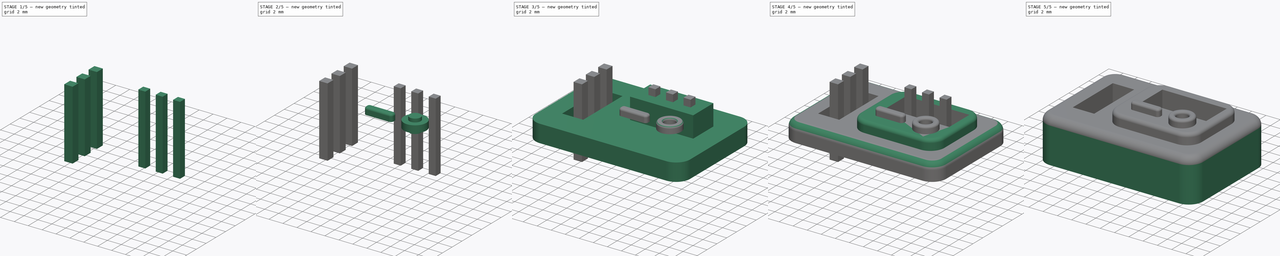
[diagram: build sequence overview — one tinted view per stage of 5, left to right]
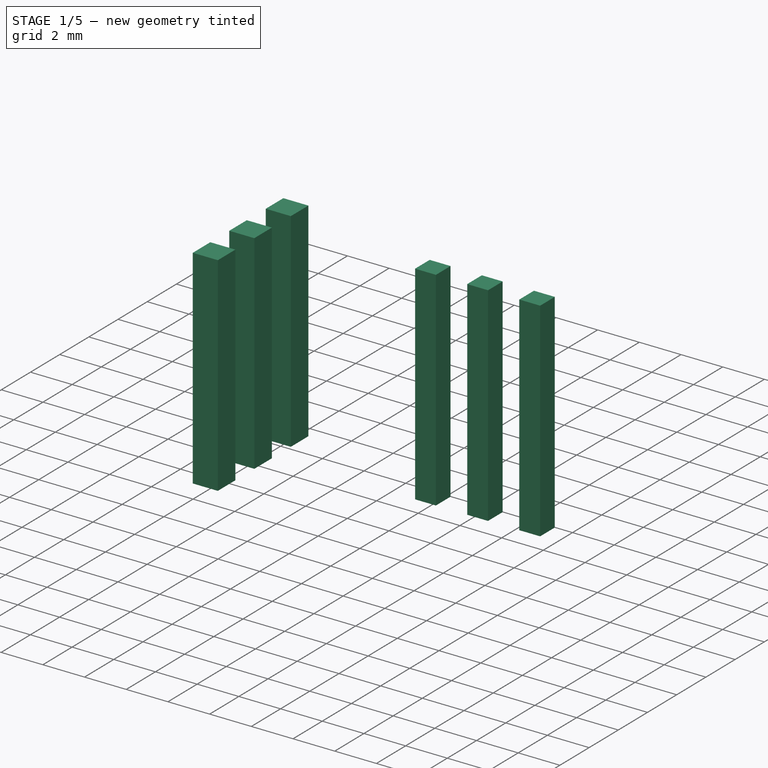
[diagram: stage 1 of 5 — iso view after this stage's code; geometry added in this stage tinted green]
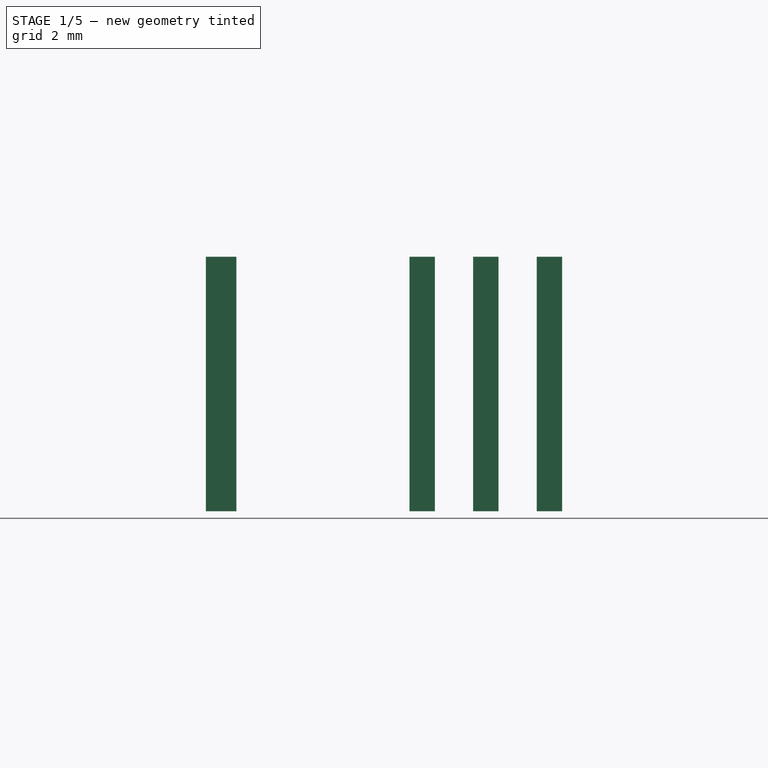
[diagram: stage 1 of 5 — front view after this stage's code; geometry added in this stage tinted green]
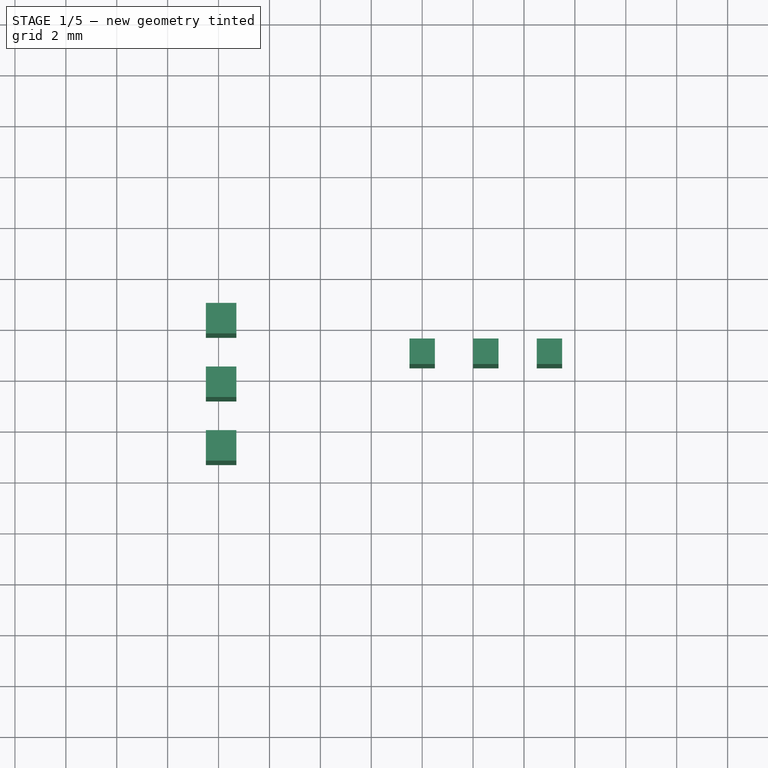
[diagram: stage 1 of 5 — top view after this stage's code; geometry added in this stage tinted green]
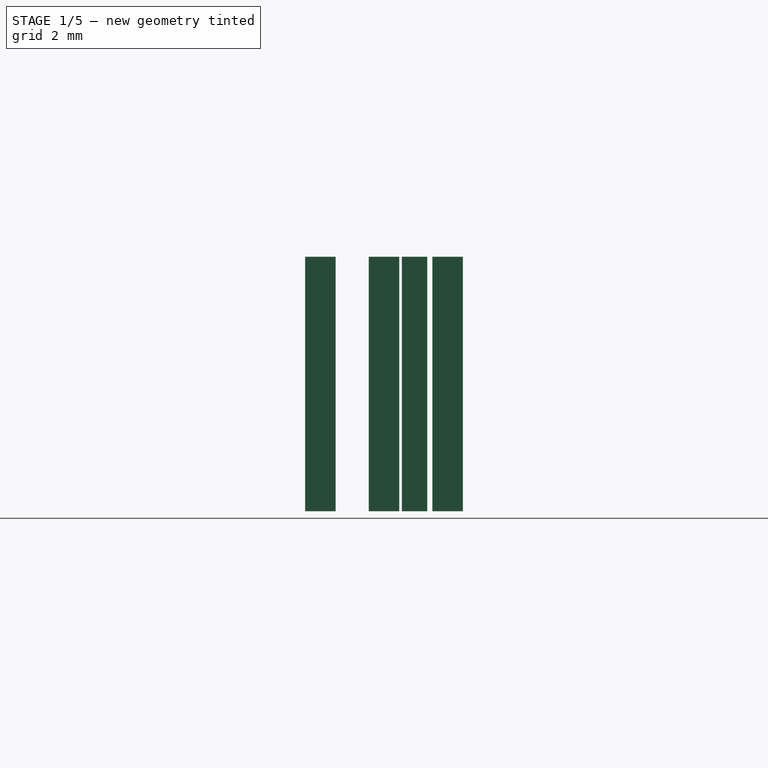
[diagram: stage 1 of 5 — right view after this stage's code; geometry added in this stage tinted green]
FCSTD DOCUMENT  (FreeCAD 0.18R16131 (Git))
Label: PCBPrint interruptor conmutador
License: Public Domain
LicenseURL: http://en.wikipedia.org/wiki/Public_domain
objects: Part::Box×10, Part::Feature×7, Part::Cut×6, Part::Fillet×6, Sketcher::SketchObject×4, App::DocumentObjectGroup×4, PartDesign::Pad×3, PartDesign::Body×3, Part::Cylinder×2, Part::MultiFuse×2, PartDesign::Pocket×1
note: 48 computed .brp shape members not serialized (recipe doc carries the construction recipe); baked Part::Feature solids carry a one-line shape summary decoded from their .brp

FEATURE [Part::Box] Box004  label="Cubo004"
  AttacherType = Attacher::AttachEngine3D
  Height = 10
  Length = 1.2
  Placement = pos=(3.5,4.7,0) rot=(0,0,1;0rad)
  Width = 1.2
FEATURE [Part::Box] Box005  label="Cubo005"
  AttacherType = Attacher::AttachEngine3D
  Height = 10
  Length = 1.2
  Placement = pos=(3.5,9.7,0) rot=(0,0,1;0rad)
  Width = 1.2
FEATURE [Part::Box] Box006  label="Cubo006"
  AttacherType = Attacher::AttachEngine3D
  Height = 10
  Length = 1.2
  Placement = pos=(3.5,7.2,0) rot=(0,0,1;0rad)
  Width = 1.2
FEATURE [Part::Box] Box007  label="Cubo007"
  AttacherType = Attacher::AttachEngine3D
  Height = 10
  Length = 1
  Placement = pos=(11.5,8.5,0) rot=(0,0,1;0rad)
  Width = 1
FEATURE [Part::Box] Box008  label="Cubo008"
  AttacherType = Attacher::AttachEngine3D
  Height = 10
  Length = 1
  Placement = pos=(14,8.5,0) rot=(0,0,1;0rad)
  Width = 1
FEATURE [Part::Box] Box009  label="Cubo009"
  AttacherType = Attacher::AttachEngine3D
  Height = 10
  Length = 1
  Placement = pos=(16.5,8.5,0) rot=(0,0,1;0rad)
  Width = 1
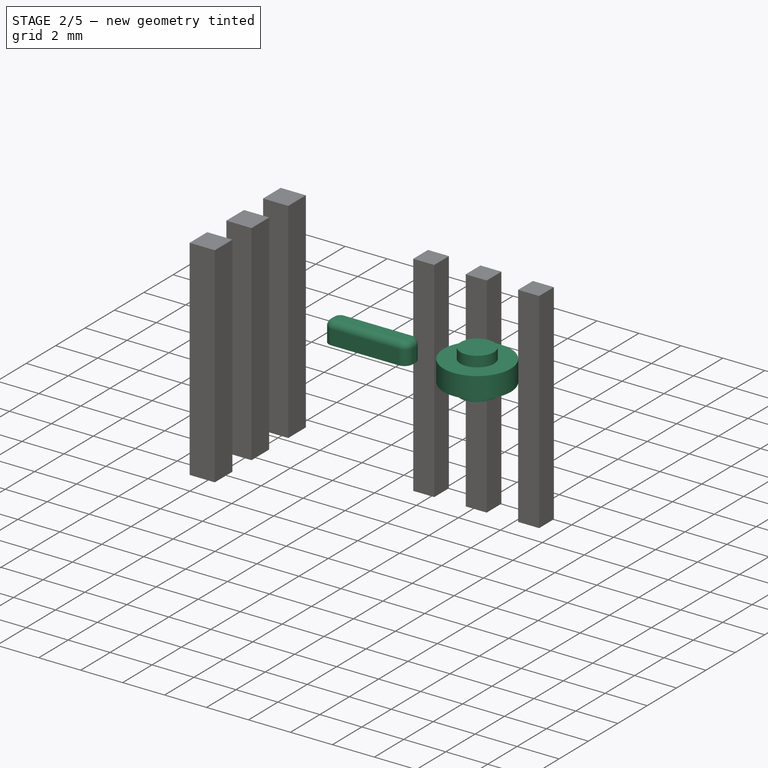
[diagram: stage 2 of 5 — iso view after this stage's code; geometry added in this stage tinted green]
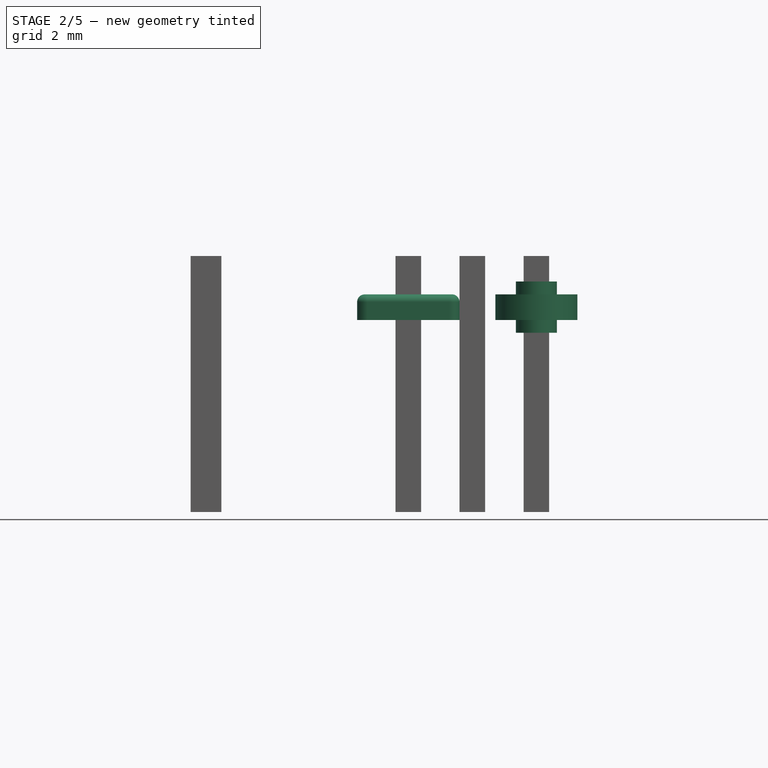
[diagram: stage 2 of 5 — front view after this stage's code; geometry added in this stage tinted green]
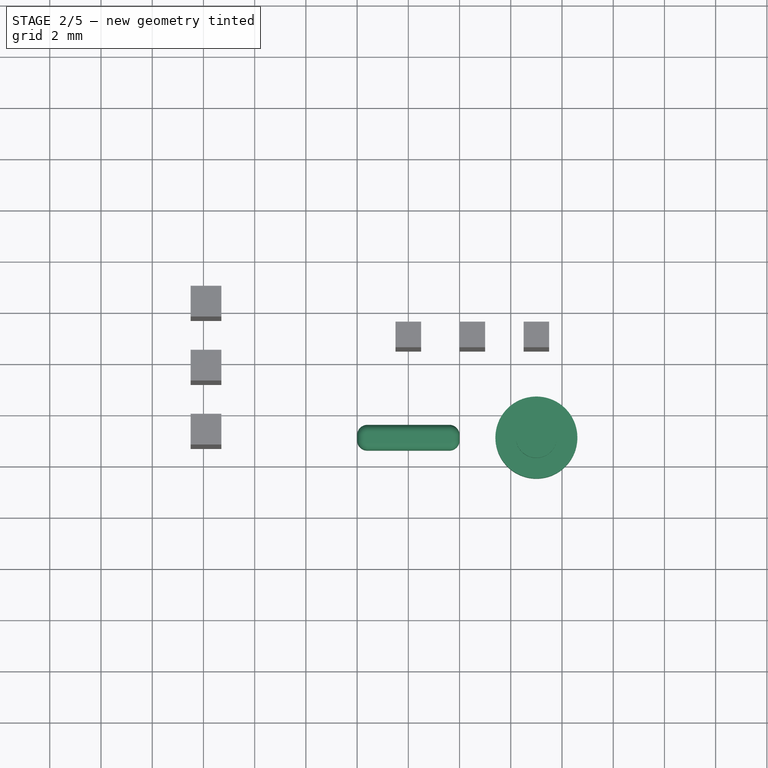
[diagram: stage 2 of 5 — top view after this stage's code; geometry added in this stage tinted green]
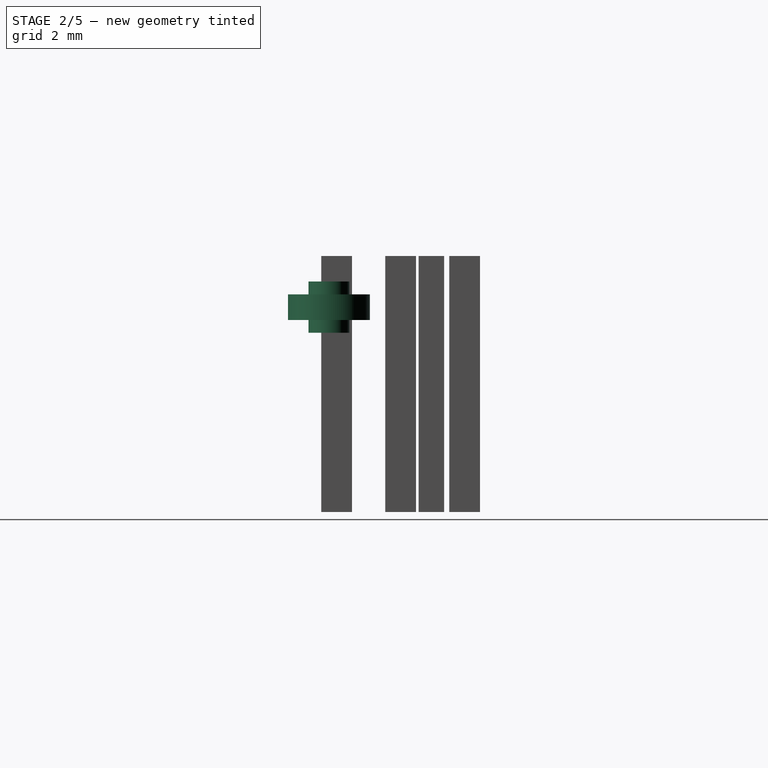
[diagram: stage 2 of 5 — right view after this stage's code; geometry added in this stage tinted green]
FEATURE [Part::Cylinder] Cylinder  label="Cilindro"
  Angle = 360
  AttacherType = Attacher::AttachEngine3D
  Height = 1
  Placement = pos=(17,5,7.5) rot=(0,0,1;0rad)
  Radius = 1.6
FEATURE [Part::Cylinder] Cylinder001  label="Cilindro001"
  Angle = 360
  AttacherType = Attacher::AttachEngine3D
  Height = 2
  Placement = pos=(17,5,7) rot=(0,0,1;0rad)
  Radius = 0.8
FEATURE [Part::Box] Box003  label="Cubo003"
  AttacherType = Attacher::AttachEngine3D
  Height = 1
  Length = 4
  Placement = pos=(10,4.5,7.5) rot=(0,0,1;0rad)
  Width = 1
FEATURE [Part::Fillet] Fillet010
  Base = -> Box003
  Edges = 4 edges r=0.4: [Edge1,Edge3,Edge5,Edge7]
FEATURE [Part::Fillet] Fillet011
  Base = -> Fillet010
  Edges = 1 edges r=0.3: [Edge7]
FEATURE [Part::MultiFuse] Fusion001  label="taladros"
  Refine = true
  Shapes = -> [Box009,Box008,Box007,Box006,Box005,Box004]
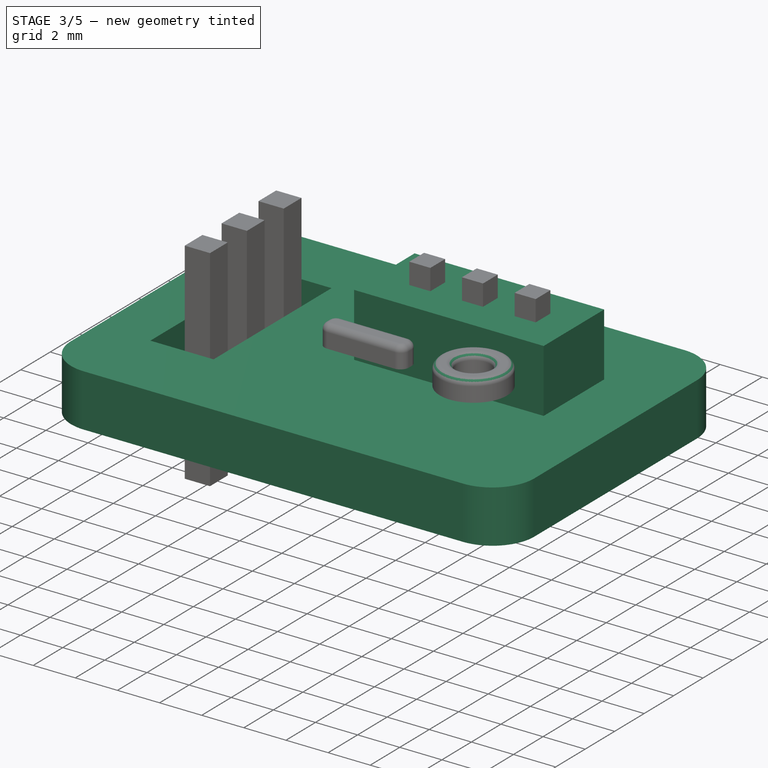
[diagram: stage 3 of 5 — iso view after this stage's code; geometry added in this stage tinted green]
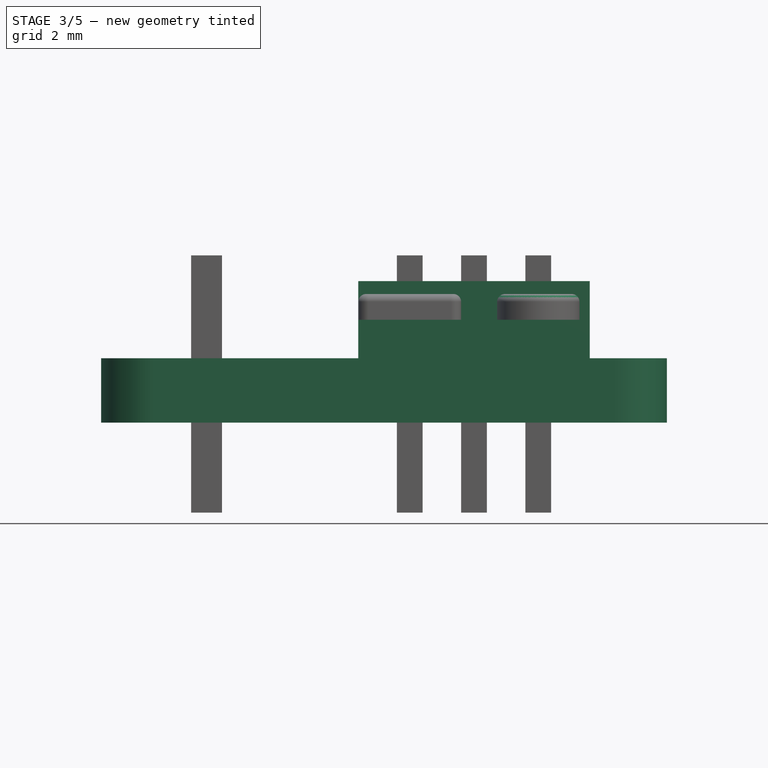
[diagram: stage 3 of 5 — front view after this stage's code; geometry added in this stage tinted green]
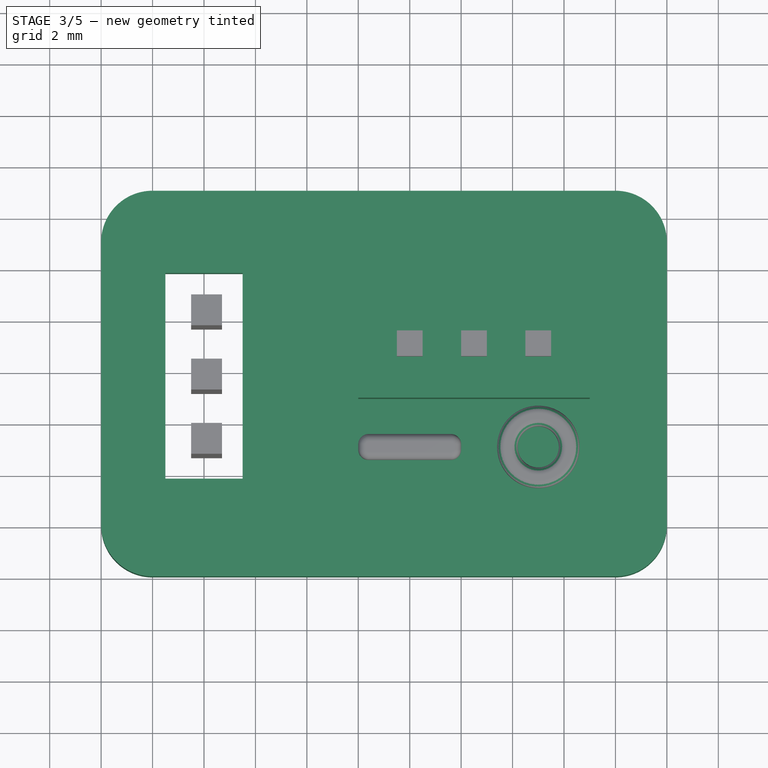
[diagram: stage 3 of 5 — top view after this stage's code; geometry added in this stage tinted green]
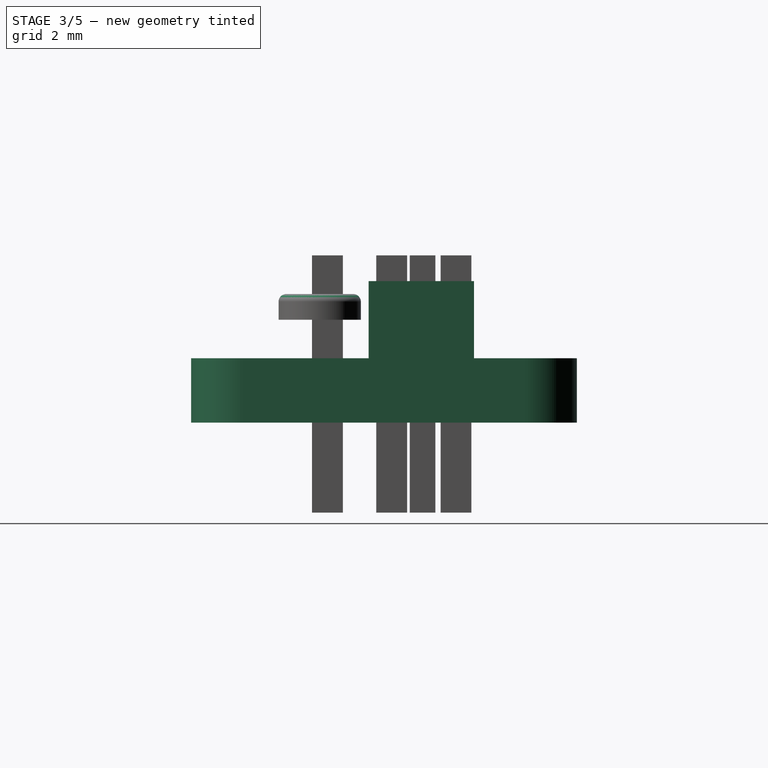
[diagram: stage 3 of 5 — right view after this stage's code; geometry added in this stage tinted green]
FEATURE [PartDesign::Body] Body001  label="Piso solido"
  Group = -> [Sketch003,Pad003005]
  Origin = -> Origin001
  Placement = pos=(0,0,2) rot=(0,0,1;0rad)
  Tip = -> Pad003005
FEATURE [Sketcher::SketchObject] Sketch004  label="PCB-base-sketch002"
  MapMode = 5
  sketch-geometry (12):
    g0: LineSegment [constr] StartX=0 StartY=0 StartZ=0 EndX=22 EndY=0 EndZ=0
    g1: LineSegment [constr] StartX=22 StartY=0 StartZ=0 EndX=22 EndY=15 EndZ=0
    g2: LineSegment [constr] StartX=22 StartY=15 StartZ=0 EndX=0 EndY=15 EndZ=0
    g3: LineSegment [constr] StartX=0 StartY=15 StartZ=0 EndX=0 EndY=0 EndZ=0
    g4: LineSegment StartX=2 StartY=15 StartZ=0 EndX=20 EndY=15 EndZ=0
    g5: LineSegment StartX=22 StartY=13 StartZ=0 EndX=22 EndY=2 EndZ=0
    g6: LineSegment StartX=20 StartY=0 StartZ=0 EndX=2 EndY=0 EndZ=0
    g7: LineSegment StartX=0 StartY=2 StartZ=0 EndX=0 EndY=13 EndZ=0
    g8: ArcOfCircle CenterX=2 CenterY=13 CenterZ=0 NormalX=0 NormalY=0 NormalZ=1 AngleXU=0 Radius=2 StartAngle=1.5708 EndAngle=3.14159
    g9: ArcOfCircle CenterX=2 CenterY=2 CenterZ=0 NormalX=0 NormalY=0 NormalZ=1 AngleXU=0 Radius=2 StartAngle=3.14159 EndAngle=4.71239
    g10: ArcOfCircle CenterX=20 CenterY=2 CenterZ=0 NormalX=0 NormalY=0 NormalZ=1 AngleXU=0 Radius=2 StartAngle=4.71239 EndAngle=6.28319
    g11: ArcOfCircle CenterX=20 CenterY=13 CenterZ=0 NormalX=0 NormalY=0 NormalZ=1 AngleXU=0 Radius=2 StartAngle=0 EndAngle=1.5708
  constraints (31):
    c: Coincident(g0,g1)
    c: Coincident(g1,g2)
    c: Coincident(g2,g3)
    c: Coincident(g3,g0)
    c: Horizontal(g0)
    c: Horizontal(g2)
    c: Vertical(g1)
    c: Vertical(g3)
    c: Coincident(g0,g-1)
    c: DistanceX(g0,g0) = 22
    c: DistanceY(g1,g1) = 15
    c: Horizontal(g4)
    c: Horizontal(g6)
    c: Vertical(g5)
    c: Vertical(g7)
    c: Tangent(g4,g8) = 1.5708
    c: Tangent(g7,g8) = 1.5708
    c: Tangent(g6,g9) = 1.5708
    c: Tangent(g7,g9) = 1.5708
    c: Tangent(g5,g10) = 1.5708
    c: Tangent(g6,g10) = 1.5708
    c: Tangent(g4,g11) = 1.5708
    c: Tangent(g5,g11) = 1.5708
    c: Equal(g8,g11)
    c: Equal(g11,g10)
    c: Equal(g10,g9)
    c: Radius(g8) = 2
    c: PointOnObject(g7,g3)
    c: PointOnObject(g4,g2)
    c: PointOnObject(g6,g0)
    c: PointOnObject(g5,g1)
FEATURE [PartDesign::Pad] Pad003006
  Length = 2.5
  Length2 = 100
  Profile = -> Sketch004
  Refine = true
  Type = 0
FEATURE [PartDesign::Body] Body002  label="cuerpo superior"
  Group = -> [Sketch004,Pad003006]
  Origin = -> Origin002
  Placement = pos=(0,0,3.5) rot=(0,0,1;0rad)
  Tip = -> Pad003006
FEATURE [Part::Box] Box  label="Cubo"
  AttacherType = Attacher::AttachEngine3D
  Height = 6
  Length = 3
  Placement = pos=(2.5,3.8,3) rot=(0,0,1;0rad)
  Width = 8
FEATURE [Part::Cut] Cut001  label="corte conector piso superior"
  Base = -> Body002
  Refine = true
  Tool = -> Box
FEATURE [Part::Box] Box001  label="Cubo001"
  AttacherType = Attacher::AttachEngine3D
  Height = 5.5
  Length = 9
  Placement = pos=(10,6.9,3.5) rot=(0,0,1;0rad)
  Width = 4.1
FEATURE [Part::Cut] Cut004  label="cero"
  Base = -> Cylinder
  Refine = true
  Tool = -> Cylinder001
FEATURE [Part::Fillet] Fillet009  label="1"
  Base = -> Cut004
  Edges = 2 edges r=0.3: [Edge1,Edge4]
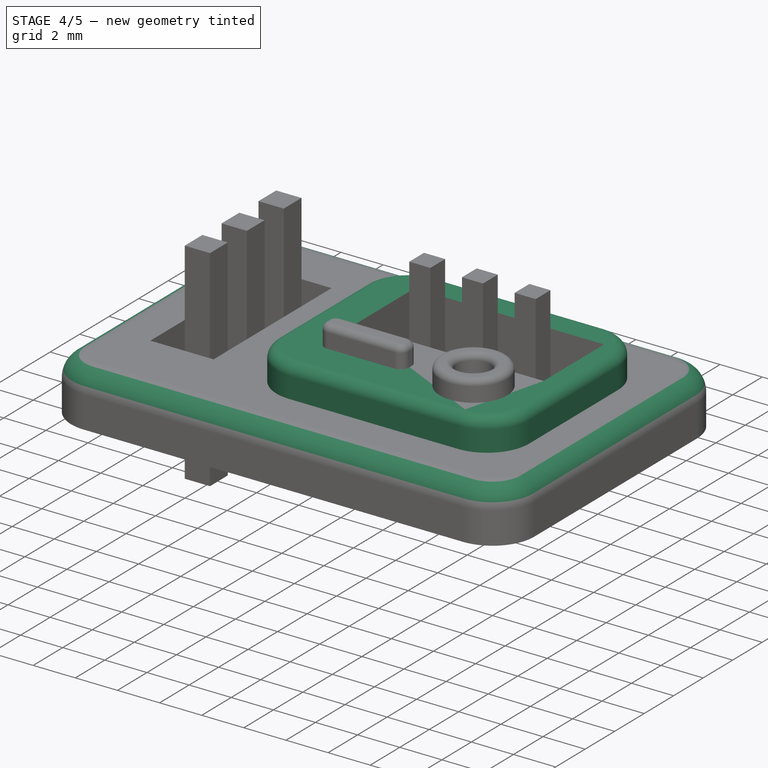
[diagram: stage 4 of 5 — iso view after this stage's code; geometry added in this stage tinted green]
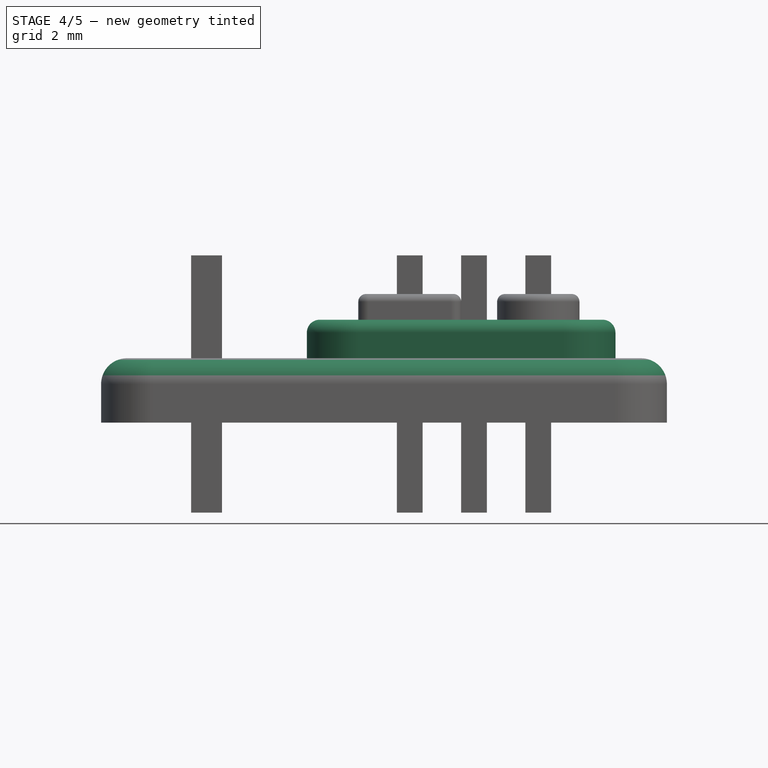
[diagram: stage 4 of 5 — front view after this stage's code; geometry added in this stage tinted green]
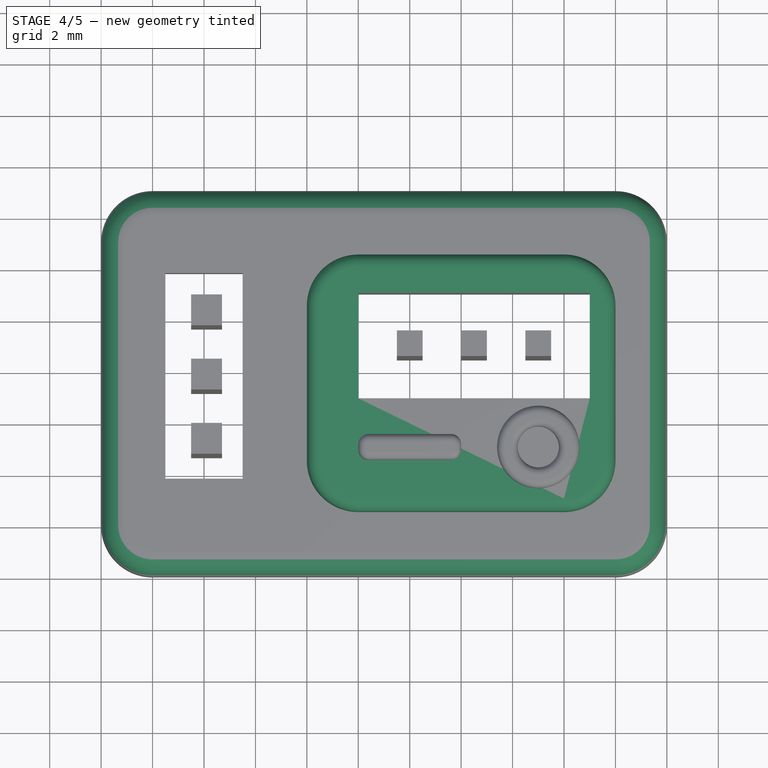
[diagram: stage 4 of 5 — top view after this stage's code; geometry added in this stage tinted green]
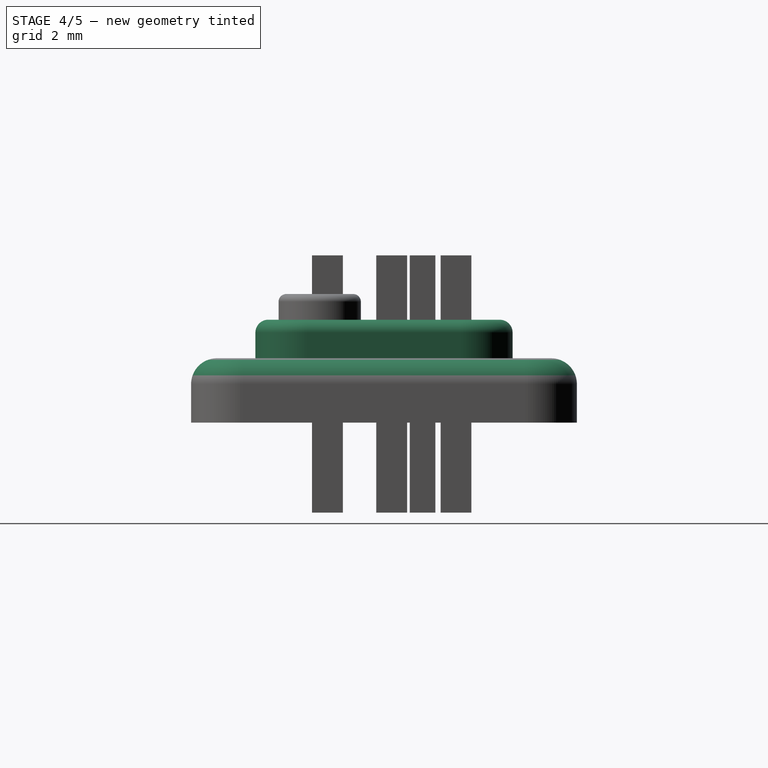
[diagram: stage 4 of 5 — right view after this stage's code; geometry added in this stage tinted green]
FEATURE [Part::Cut] Cut002  label="Corte interruptor piso superior"
  Base = -> Cut001
  Refine = true
  Tool = -> Box001
FEATURE [Part::Box] Box002  label="Cubo002"
  AttacherType = Attacher::AttachEngine3D
  Height = 1.5
  Length = 12
  Placement = pos=(8,2.5,6) rot=(0,0,1;0rad)
  Width = 10
FEATURE [Part::Cut] Cut003  label=" soporte 0-1"
  Base = -> Box002
  Refine = true
  Tool = -> Box001
FEATURE [Part::Fillet] Fillet
  Base = -> Cut003
  Edges = 4 edges r=2: [Edge1,Edge3,Edge6,Edge15]
FEATURE [Part::Fillet] Fillet007  label="soporte 0-1"
  Base = -> Fillet
  Edges = 1 edges r=0.5: [Edge1]
FEATURE [Part::Fillet] Fillet008
  Base = -> Cut002
  Edges = 1 edges r=1: [Edge4]
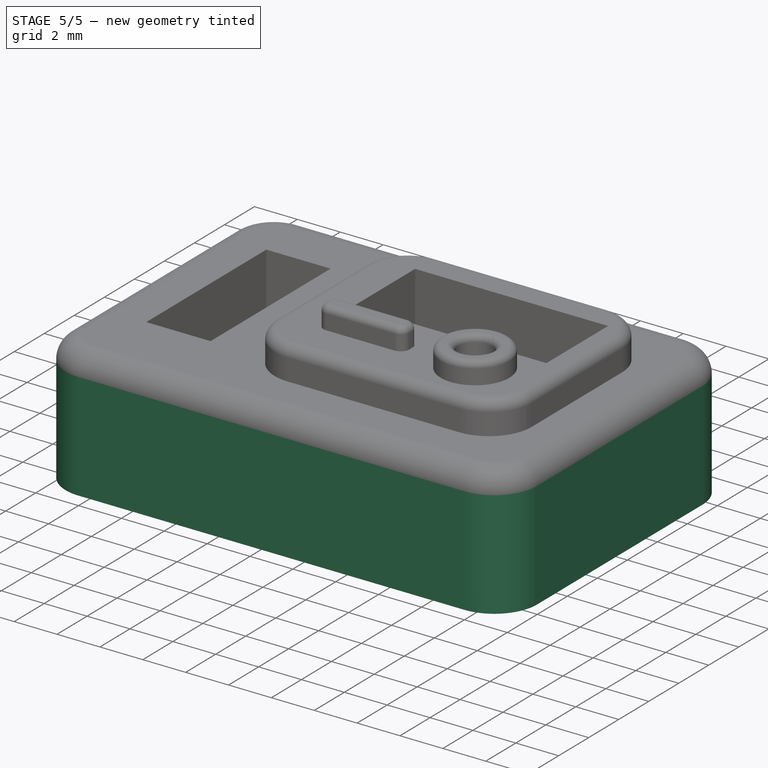
[diagram: stage 5 of 5 — iso view after this stage's code; geometry added in this stage tinted green]
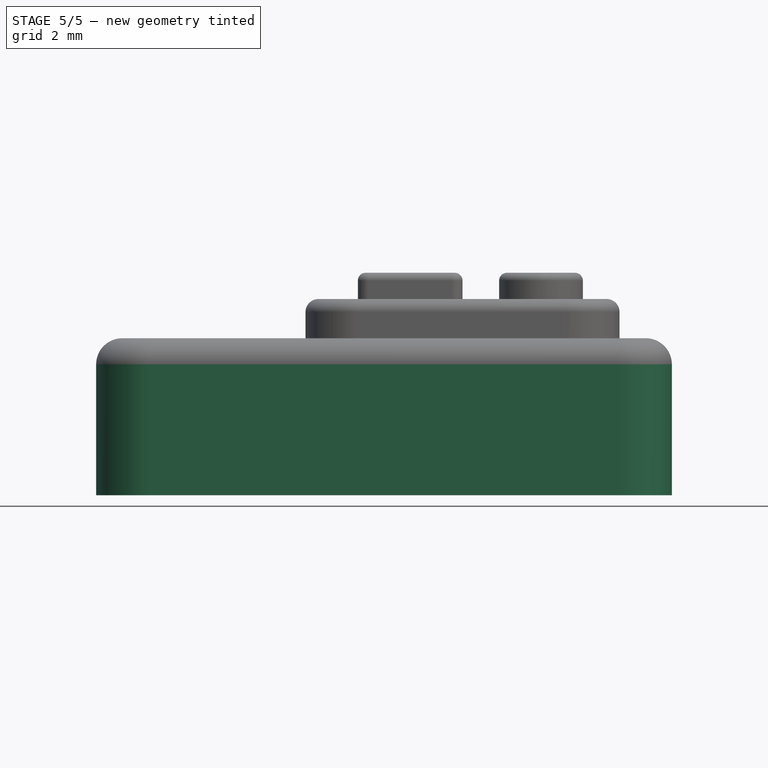
[diagram: stage 5 of 5 — front view after this stage's code; geometry added in this stage tinted green]
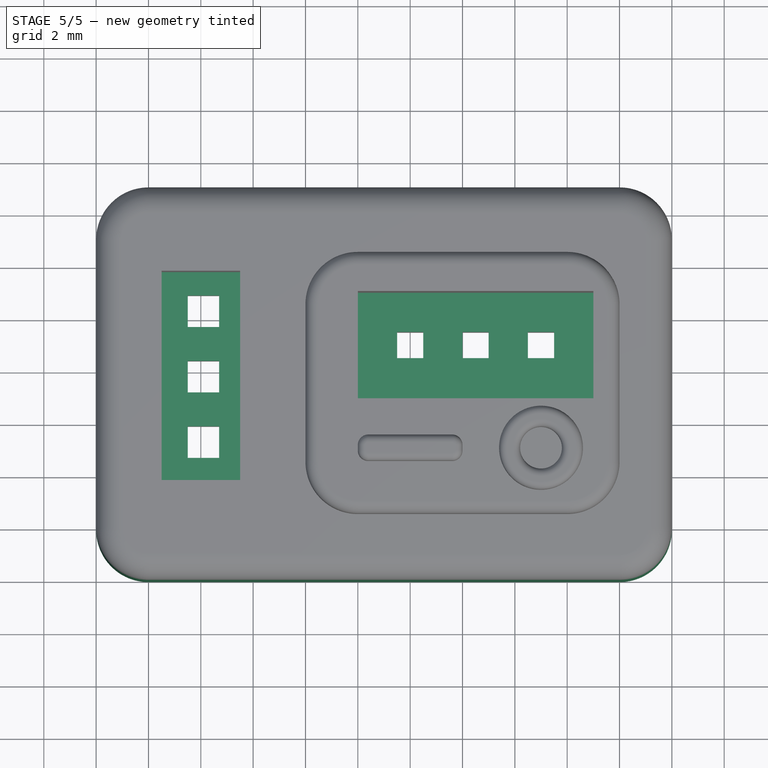
[diagram: stage 5 of 5 — top view after this stage's code; geometry added in this stage tinted green]
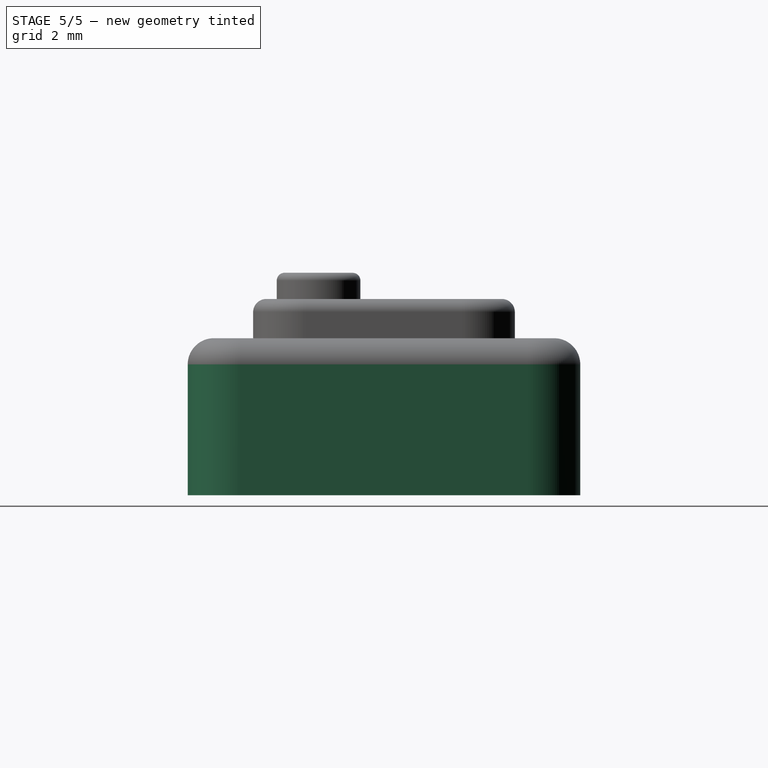
[diagram: stage 5 of 5 — right view after this stage's code; geometry added in this stage tinted green]
FEATURE [Sketcher::SketchObject] Sketch  label="PCB-base-sketch"
  MapMode = 5
  sketch-geometry (12):
    g0: LineSegment [constr] StartX=0 StartY=0 StartZ=0 EndX=22 EndY=0 EndZ=0
    g1: LineSegment [constr] StartX=22 StartY=0 StartZ=0 EndX=22 EndY=15 EndZ=0
    g2: LineSegment [constr] StartX=22 StartY=15 StartZ=0 EndX=0 EndY=15 EndZ=0
    g3: LineSegment [constr] StartX=0 StartY=15 StartZ=0 EndX=0 EndY=0 EndZ=0
    g4: LineSegment StartX=2 StartY=15 StartZ=0 EndX=20 EndY=15 EndZ=0
    g5: LineSegment StartX=22 StartY=13 StartZ=0 EndX=22 EndY=2 EndZ=0
    g6: LineSegment StartX=20 StartY=0 StartZ=0 EndX=2 EndY=0 EndZ=0
    g7: LineSegment StartX=0 StartY=2 StartZ=0 EndX=0 EndY=13 EndZ=0
    g8: ArcOfCircle CenterX=2 CenterY=13 CenterZ=0 NormalX=0 NormalY=0 NormalZ=1 AngleXU=0 Radius=2 StartAngle=1.5708 EndAngle=3.14159
    g9: ArcOfCircle CenterX=2 CenterY=2 CenterZ=0 NormalX=0 NormalY=0 NormalZ=1 AngleXU=0 Radius=2 StartAngle=3.14159 EndAngle=4.71239
    g10: ArcOfCircle CenterX=20 CenterY=2 CenterZ=0 NormalX=0 NormalY=0 NormalZ=1 AngleXU=0 Radius=2 StartAngle=4.71239 EndAngle=6.28319
    g11: ArcOfCircle CenterX=20 CenterY=13 CenterZ=0 NormalX=0 NormalY=0 NormalZ=1 AngleXU=0 Radius=2 StartAngle=0 EndAngle=1.5708
  constraints (31):
    c: Coincident(g0,g1)
    c: Coincident(g1,g2)
    c: Coincident(g2,g3)
    c: Coincident(g3,g0)
    c: Horizontal(g0)
    c: Horizontal(g2)
    c: Vertical(g1)
    c: Vertical(g3)
    c: Coincident(g0,g-1)
    c: DistanceX(g0,g0) = 22
    c: DistanceY(g1,g1) = 15
    c: Horizontal(g4)
    c: Horizontal(g6)
    c: Vertical(g5)
    c: Vertical(g7)
    c: Tangent(g4,g8) = 1.5708
    c: Tangent(g7,g8) = 1.5708
    c: Tangent(g6,g9) = 1.5708
    c: Tangent(g7,g9) = 1.5708
    c: Tangent(g5,g10) = 1.5708
    c: Tangent(g6,g10) = 1.5708
    c: Tangent(g4,g11) = 1.5708
    c: Tangent(g5,g11) = 1.5708
    c: Equal(g8,g11)
    c: Equal(g11,g10)
    c: Equal(g10,g9)
    c: Radius(g8) = 2
    c: PointOnObject(g7,g3)
    c: PointOnObject(g4,g2)
    c: PointOnObject(g6,g0)
    c: PointOnObject(g5,g1)
FEATURE [PartDesign::Pad] Pad
  Length = 2
  Length2 = 100
  Profile = -> Sketch
  Refine = true
  Type = 0
FEATURE [Part::Feature] Clone001001  label="pins001"
  Placement = pos=(2.8,10.27,8.2) rot=(-0.707107,0,-0.707107;3.14159rad)
  shape: bbox 4.57 x 5.72 x 10.36 mm, 54 faces, 3 solids (baked)
FEATURE [Part::Feature] Clone002001  label="Insulators001"
  Placement = pos=(2.8,5.27,2) rot=(0,1,0;1.5708rad)
  shape: bbox 2.5 x 7.62 x 2.54 mm, 42 faces, 3 solids (baked)
FEATURE [App::DocumentObjectGroup] Group001  label="connector"
  Group = -> [Clone001001,Clone002001]
FEATURE [Sketcher::SketchObject] Sketch001
  MapMode = 5
  Placement = pos=(0,0,2) rot=(0,0,1;0rad)
  Support = -> [Pad]
  sketch-geometry (21):
    g0: LineSegment StartX=10.0049 StartY=10.957 StartZ=0 EndX=12.982 EndY=10.957 EndZ=0
    g1: LineSegment StartX=10.0049 StartY=8.85701 StartZ=0 EndX=10.0049 EndY=10.957 EndZ=0
    g2: LineSegment StartX=3.10381 StartY=6.85701 StartZ=0 EndX=3.10381 EndY=8.85701 EndZ=0
    g3: LineSegment StartX=3.10381 StartY=8.85701 StartZ=0 EndX=10.0049 EndY=8.85701 EndZ=0
    g4: LineSegment StartX=3.10381 StartY=6.85701 StartZ=0 EndX=16.3555 EndY=6.85701 EndZ=0
    g5: LineSegment StartX=3.10381 StartY=9.54561 StartZ=0 EndX=5.50575 EndY=9.54561 EndZ=0
    g6: LineSegment StartX=5.50575 StartY=9.54561 StartZ=0 EndX=5.50575 EndY=12.4935 EndZ=0
    g7: LineSegment StartX=5.50575 StartY=12.4935 StartZ=0 EndX=12.7415 EndY=12.4935 EndZ=0
    g8: LineSegment StartX=15.9209 StartY=13.4938 StartZ=0 EndX=3.10381 EndY=13.4938 EndZ=0
    g9: LineSegment StartX=3.10381 StartY=13.4938 StartZ=0 EndX=3.10381 EndY=9.54561 EndZ=0
    g10: LineSegment StartX=15.9209 StartY=10.957 StartZ=0 EndX=19.0049 EndY=10.957 EndZ=0
    g11: LineSegment StartX=12.7415 StartY=12.4935 StartZ=0 EndX=12.982 EndY=10.957 EndZ=0
    g12: LineSegment StartX=15.9209 StartY=13.4938 StartZ=0 EndX=15.9209 EndY=10.957 EndZ=0
    g13: LineSegment StartX=3.10381 StartY=6.00762 StartZ=0 EndX=5.48168 EndY=6.00762 EndZ=0
    g14: LineSegment StartX=5.48168 StartY=6.00762 StartZ=0 EndX=5.48168 EndY=4.26973 EndZ=0
    g15: LineSegment StartX=5.48168 StartY=4.26973 StartZ=0 EndX=16.3555 EndY=4.26973 EndZ=0
    g16: LineSegment StartX=16.3555 StartY=4.26973 StartZ=0 EndX=16.3555 EndY=6.85701 EndZ=0
    g17: LineSegment StartX=19.0049 StartY=2.65271 StartZ=0 EndX=3.10381 EndY=2.65271 EndZ=0
    g18: LineSegment StartX=3.10381 StartY=2.65271 StartZ=0 EndX=3.10381 EndY=6.00762 EndZ=0
    g19: LineSegment [constr] StartX=3.10381 StartY=13.4938 StartZ=0 EndX=3.10381 EndY=2.65271 EndZ=0
    g20: LineSegment StartX=19.0049 StartY=10.957 StartZ=0 EndX=19.0049 EndY=2.65271 EndZ=0
  constraints (46):
    c: Coincident(g1,g0)
    c: Horizontal(g0)
    c: Vertical(g1)
    c: DistanceX(g0,g10) = 9
    c: Vertical(g2)
    c: Coincident(g2,g3)
    c: Horizontal(g3)
    c: Coincident(g1,g3)
    c: Coincident(g4,g2)
    c: Horizontal(g4)
    c: DistanceY(g2,g2) = 2
    c: Horizontal(g5)
    c: Coincident(g5,g6)
    c: Vertical(g6)
    c: Coincident(g6,g7)
    c: Horizontal(g7)
    c: Horizontal(g8)
    c: Coincident(g8,g9)
    c: Coincident(g9,g5)
    c: Vertical(g9)
    c: Tangent(g0,g10)
    c: Coincident(g11,g0)
    c: Coincident(g7,g11)
    c: Coincident(g12,g8)
    c: Coincident(g10,g12)
    c: Vertical(g12)
    c: Horizontal(g13)
    c: Coincident(g13,g14)
    c: Vertical(g14)
    c: Coincident(g14,g15)
    c: Horizontal(g15)
    c: Coincident(g15,g16)
    c: Vertical(g16)
    c: Horizontal(g17)
    c: Coincident(g17,g18)
    c: Coincident(g18,g13)
    c: Vertical(g18)
    c: Coincident(g4,g16)
    c: Coincident(g19,g8)
    c: Coincident(g19,g17)
    c: Vertical(g19)
    c: PointOnObject(g2,g19)
    c: Coincident(g20,g10)
    c: Coincident(g20,g17)
    c: Vertical(g20)
    c: DistanceY(g4,g10) = 4.1
FEATURE [PartDesign::Pocket] Pocket
  BaseFeature = -> Pad
  Length = 5
  Length2 = 100
  Profile = -> Sketch001
  Refine = true
  Type = 1
FEATURE [PartDesign::Body] Body  label="Guias Cableado"
  Group = -> [Sketch,Pad,Sketch001,Pocket]
  Origin = -> Origin
  Tip = -> Pocket
FEATURE [Part::Feature] Part__Feature  label="pines"
  Placement = pos=(10.2,7,3.5) rot=(0,0,1;0rad)
  shape: bbox 5.5 x 0.3 x 4.7 mm, 18 faces, 3 solids (baked)
FEATURE [Part::Feature] Part__Feature015  label="cuerpo_metalico"
  Placement = pos=(10.2,7,3.5) rot=(0,0,1;0rad)
  shape: bbox 8.6 x 3.9 x 4 mm, 51 faces (baked)
FEATURE [Part::Feature] Part__Feature016  label="Interuptor"
  Placement = pos=(10.2,7,3.5) rot=(0,0,1;0rad)
  shape: bbox 3.8 x 2 x 4.1 mm, 14 faces (baked)
FEATURE [Part::Feature] Part__Feature017  label="Fibra"
  Placement = pos=(10.2,7,3.5) rot=(0,0,1;0rad)
  shape: bbox 8.56 x 3.86 x 0.61 mm, 26 faces (baked)
FEATURE [App::DocumentObjectGroup] Group006  label="interuptor conmutador"
  Group = -> [Part__Feature017,Part__Feature016,Part__Feature015,Part__Feature]
FEATURE [App::DocumentObjectGroup] Group  label="Electronic-components"
  Group = -> [Group001,Group006]
FEATURE [Sketcher::SketchObject] Sketch003  label="PCB-base-sketch001"
  MapMode = 5
  sketch-geometry (12):
    g0: LineSegment [constr] StartX=0 StartY=0 StartZ=0 EndX=22 EndY=0 EndZ=0
    g1: LineSegment [constr] StartX=22 StartY=0 StartZ=0 EndX=22 EndY=15 EndZ=0
    g2: LineSegment [constr] StartX=22 StartY=15 StartZ=0 EndX=0 EndY=15 EndZ=0
    g3: LineSegment [constr] StartX=0 StartY=15 StartZ=0 EndX=0 EndY=0 EndZ=0
    g4: LineSegment StartX=2 StartY=15 StartZ=0 EndX=20 EndY=15 EndZ=0
    g5: LineSegment StartX=22 StartY=13 StartZ=0 EndX=22 EndY=2 EndZ=0
    g6: LineSegment StartX=20 StartY=0 StartZ=0 EndX=2 EndY=0 EndZ=0
    g7: LineSegment StartX=0 StartY=2 StartZ=0 EndX=0 EndY=13 EndZ=0
    g8: ArcOfCircle CenterX=2 CenterY=13 CenterZ=0 NormalX=0 NormalY=0 NormalZ=1 AngleXU=0 Radius=2 StartAngle=1.5708 EndAngle=3.14159
    g9: ArcOfCircle CenterX=2 CenterY=2 CenterZ=0 NormalX=0 NormalY=0 NormalZ=1 AngleXU=0 Radius=2 StartAngle=3.14159 EndAngle=4.71239
    g10: ArcOfCircle CenterX=20 CenterY=2 CenterZ=0 NormalX=0 NormalY=0 NormalZ=1 AngleXU=0 Radius=2 StartAngle=4.71239 EndAngle=6.28319
    g11: ArcOfCircle CenterX=20 CenterY=13 CenterZ=0 NormalX=0 NormalY=0 NormalZ=1 AngleXU=0 Radius=2 StartAngle=0 EndAngle=1.5708
  constraints (31):
    c: Coincident(g0,g1)
    c: Coincident(g1,g2)
    c: Coincident(g2,g3)
    c: Coincident(g3,g0)
    c: Horizontal(g0)
    c: Horizontal(g2)
    c: Vertical(g1)
    c: Vertical(g3)
    c: Coincident(g0,g-1)
    c: DistanceX(g0,g0) = 22
    c: DistanceY(g1,g1) = 15
    c: Horizontal(g4)
    c: Horizontal(g6)
    c: Vertical(g5)
    c: Vertical(g7)
    c: Tangent(g4,g8) = 1.5708
    c: Tangent(g7,g8) = 1.5708
    c: Tangent(g6,g9) = 1.5708
    c: Tangent(g7,g9) = 1.5708
    c: Tangent(g5,g10) = 1.5708
    c: Tangent(g6,g10) = 1.5708
    c: Tangent(g4,g11) = 1.5708
    c: Tangent(g5,g11) = 1.5708
    c: Equal(g8,g11)
    c: Equal(g11,g10)
    c: Equal(g10,g9)
    c: Radius(g8) = 2
    c: PointOnObject(g7,g3)
    c: PointOnObject(g4,g2)
    c: PointOnObject(g6,g0)
    c: PointOnObject(g5,g1)
FEATURE [PartDesign::Pad] Pad003005
  Length = 1.5
  Length2 = 100
  Profile = -> Sketch003
  Refine = true
  Type = 0
FEATURE [Part::Cut] Cut  label="corte conector piso solido"
  Base = -> Body001
  Refine = true
  Tool = -> Box
FEATURE [Part::MultiFuse] Fusion  label="cuerpo sin agujeros"
  Refine = true
  Shapes = -> [Body,Cut,Fillet007,Fillet008,Fillet009,Fillet011]
FEATURE [Part::Cut] Cut005  label="PCBPrint Interruptor conmutador"
  Base = -> Fusion
  Refine = true
  Tool = -> Fusion001
FEATURE [App::DocumentObjectGroup] Group007  label="src"
  Group = -> [Cut005]
FEATURE [Part::Feature] Cut005001_solid  label="Cuerpo PCBPrint"
  shape: bbox 22.33 x 15.33 x 8.5 mm, 113 faces (baked)
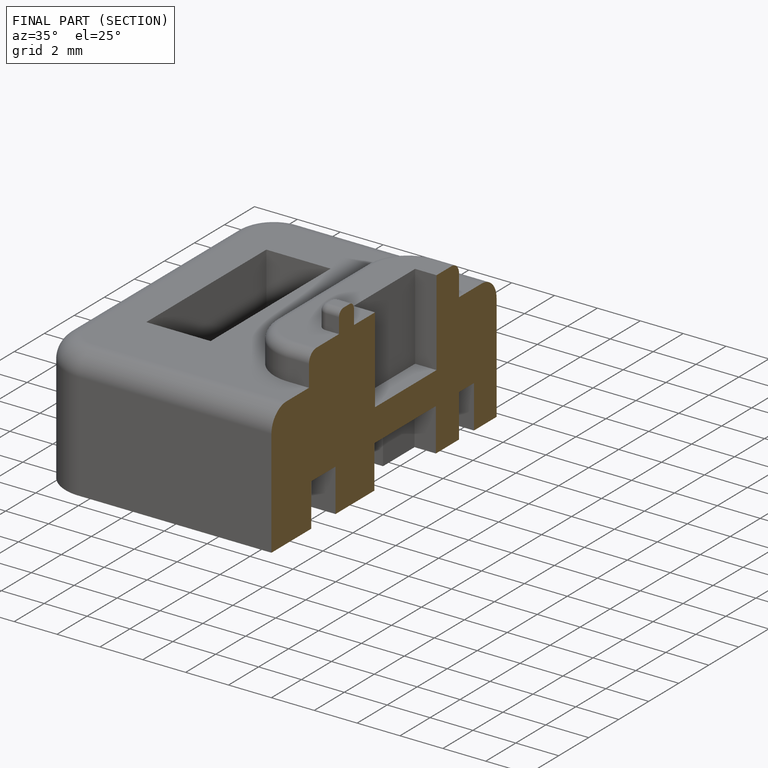
[diagram: finished part — half-section view (interior)]
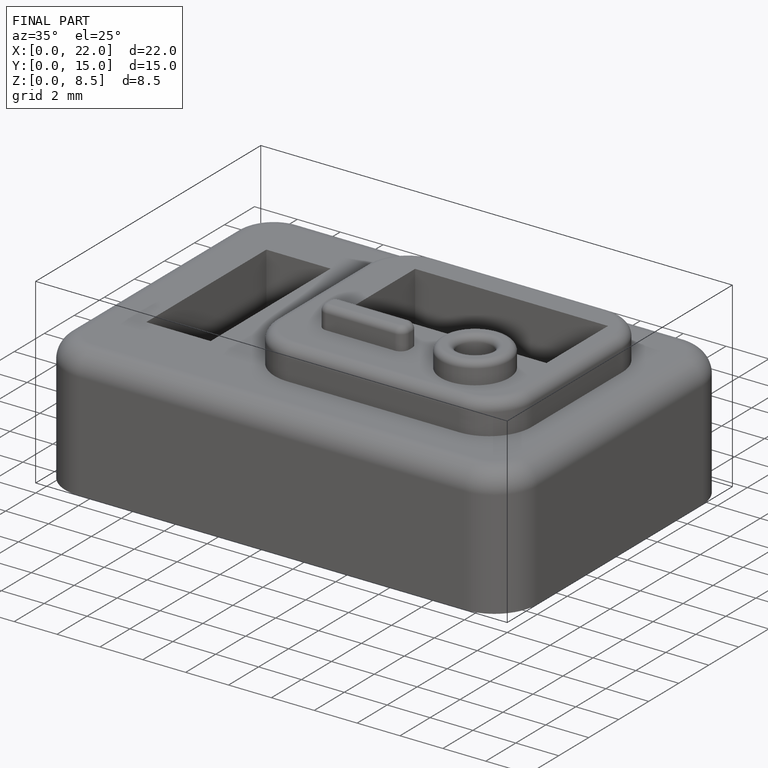
[diagram: finished part — iso view with bounding-box wireframe]
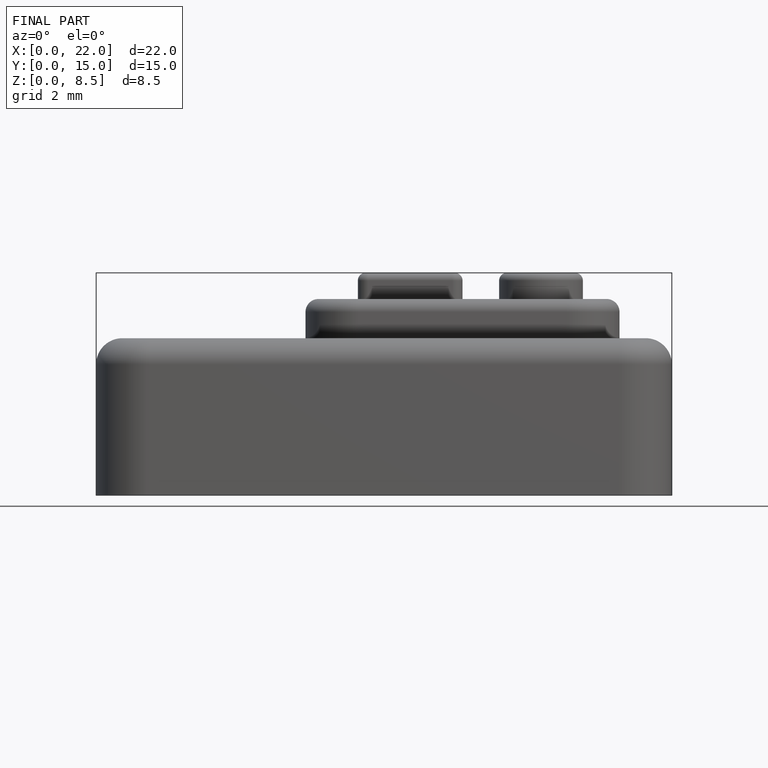
[diagram: finished part — front view with bounding-box wireframe]
